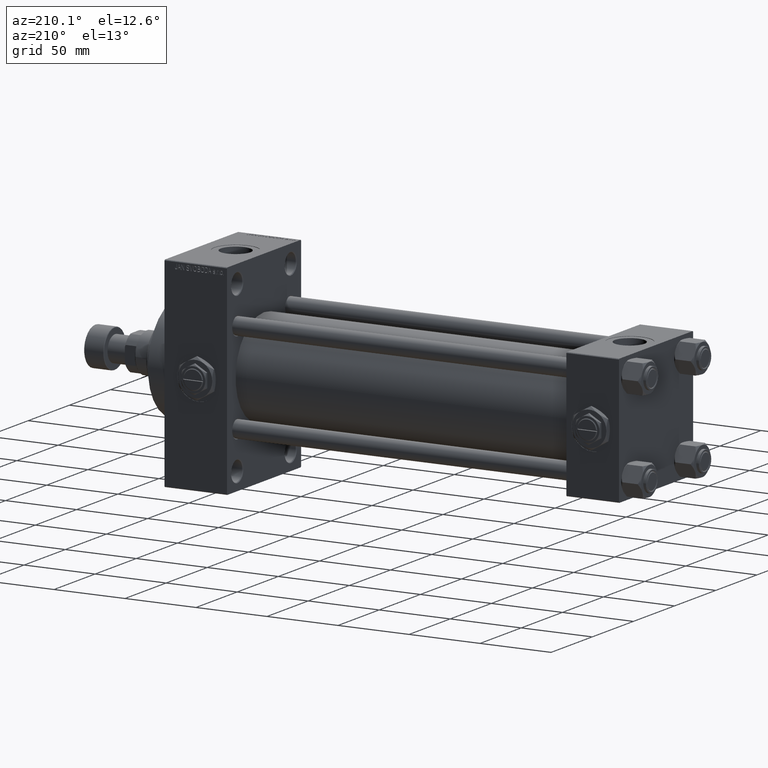
[diagram: clean part render]
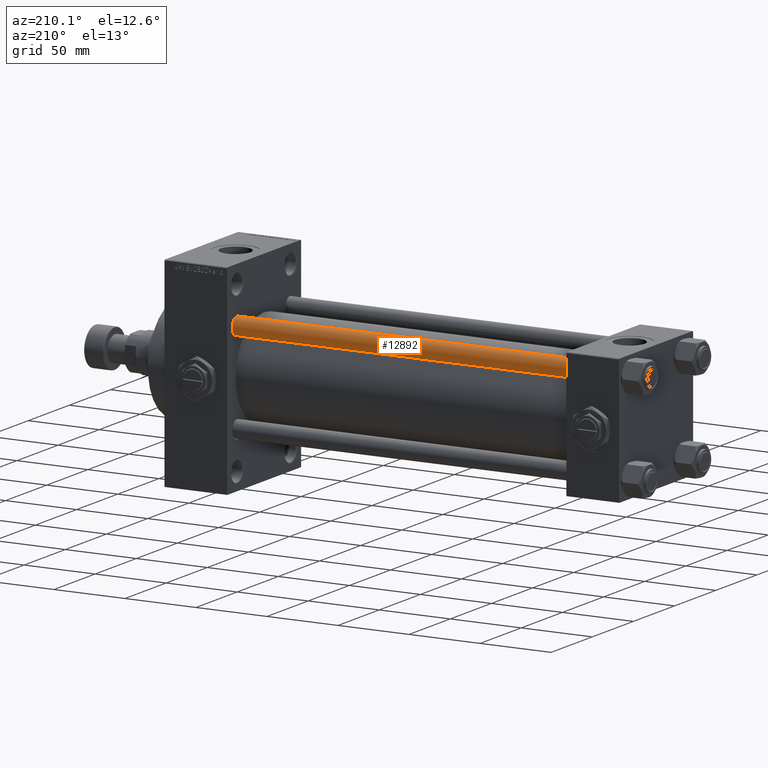
[diagram: same view with one face highlighted and labeled with its STEP entity id]
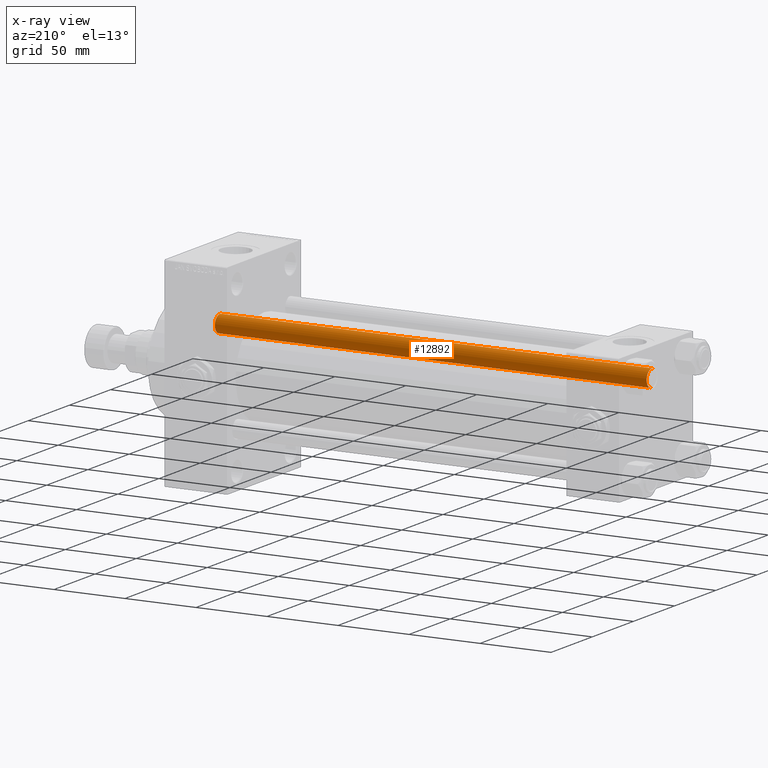
[diagram: x-ray of the same camera — body ghosted, the highlighted face saturated]
A machine part, auxiliary view. The second image highlights one B-rep face of the part: STEP entity #12892.
The next image is the same camera in x-ray: the body ghosted, the highlighted face saturated — about 0% of this face is hidden behind the body in this view.
In plain terms, the highlighted cylindrical surface (edge-blend (fillet) strip) has radius 6 mm, axis along (-1, -0, 0).
Its self-contained STEP definition (entity closure, byte-faithful):
#1213 = CIRCLE ( 'NONE', #36572, 6.000000000000000888 ) ;
#3105 = EDGE_CURVE ( 'NONE', #17522, #37456, #21265, .T. ) ;
#3807 = DIRECTION ( 'NONE',  ( -1.000000000000000000, 0.000000000000000000, 0.000000000000000000 ) ) ;
#3820 = CARTESIAN_POINT ( 'NONE',  ( 6.000000000000000888, 7.347880794884120722E-16, 305.0000000000000000 ) ) ;
#3878 = EDGE_CURVE ( 'NONE', #20648, #4058, #1213, .T. ) ;
#4058 = VERTEX_POINT ( 'NONE', #36376 ) ;
#4481 = DIRECTION ( 'NONE',  ( 1.000000000000000000, 0.000000000000000000, 0.000000000000000000 ) ) ;
#4625 = AXIS2_PLACEMENT_3D ( 'NONE', #42287, #38261, #3807 ) ;
#6978 = EDGE_CURVE ( 'NONE', #37456, #20648, #42040, .T. ) ;
#9352 = DIRECTION ( 'NONE',  ( 1.000000000000000000, 0.000000000000000000, 0.000000000000000000 ) ) ;
#9574 = VECTOR ( 'NONE', #24226, 1000.000000000000000 ) ;
#9730 = CARTESIAN_POINT ( 'NONE',  ( 6.000000000000000888, 7.347880794884120722E-16, 304.5000000000000000 ) ) ;
#12892 = ADVANCED_FACE ( 'NONE', ( #46319 ), #45318, .T. ) ;
#13010 = CARTESIAN_POINT ( 'NONE',  ( -6.000000000000000888, 0.000000000000000000, 304.5000000000000000 ) ) ;
#14595 = ORIENTED_EDGE ( 'NONE', *, *, #6978, .T. ) ;
#17522 = VERTEX_POINT ( 'NONE', #13010 ) ;
#20443 = LINE ( 'NONE', #23987, #9574 ) ;
#20648 = VERTEX_POINT ( 'NONE', #34510 ) ;
#21265 = CIRCLE ( 'NONE', #37319, 6.000000000000000888 ) ;
#23987 = CARTESIAN_POINT ( 'NONE',  ( -6.000000000000000888, 0.000000000000000000, 305.0000000000000000 ) ) ;
#24226 = DIRECTION ( 'NONE',  ( -0.000000000000000000, -0.000000000000000000, -1.000000000000000000 ) ) ;
#27892 = CARTESIAN_POINT ( 'NONE',  ( 0.000000000000000000, 0.000000000000000000, 0.5000000000000004441 ) ) ;
#28380 = DIRECTION ( 'NONE',  ( -0.000000000000000000, -0.000000000000000000, 1.000000000000000000 ) ) ;
#31815 = ORIENTED_EDGE ( 'NONE', *, *, #3105, .T. ) ;
#34510 = CARTESIAN_POINT ( 'NONE',  ( 6.000000000000000888, 7.347880794884120722E-16, 0.5000000000000004441 ) ) ;
#36376 = CARTESIAN_POINT ( 'NONE',  ( -6.000000000000000888, 0.000000000000000000, 0.5000000000000004441 ) ) ;
#36572 = AXIS2_PLACEMENT_3D ( 'NONE', #27892, #28380, #4481 ) ;
#36705 = EDGE_CURVE ( 'NONE', #17522, #4058, #20443, .T. ) ;
#37319 = AXIS2_PLACEMENT_3D ( 'NONE', #39318, #47605, #9352 ) ;
#37456 = VERTEX_POINT ( 'NONE', #9730 ) ;
#38261 = DIRECTION ( 'NONE',  ( -0.000000000000000000, -0.000000000000000000, -1.000000000000000000 ) ) ;
#39279 = DIRECTION ( 'NONE',  ( -0.000000000000000000, -0.000000000000000000, -1.000000000000000000 ) ) ;
#39318 = CARTESIAN_POINT ( 'NONE',  ( 0.000000000000000000, 0.000000000000000000, 304.5000000000000000 ) ) ;
#41758 = ORIENTED_EDGE ( 'NONE', *, *, #3878, .T. ) ;
#42040 = LINE ( 'NONE', #3820, #46990 ) ;
#42287 = CARTESIAN_POINT ( 'NONE',  ( 0.000000000000000000, 0.000000000000000000, 305.0000000000000000 ) ) ;
#44091 = ORIENTED_EDGE ( 'NONE', *, *, #36705, .F. ) ;
#45318 = CYLINDRICAL_SURFACE ( 'NONE', #4625, 6.000000000000000888 ) ;
#46319 = FACE_OUTER_BOUND ( 'NONE', #48573, .T. ) ;
#46990 = VECTOR ( 'NONE', #39279, 1000.000000000000000 ) ;
#47605 = DIRECTION ( 'NONE',  ( 0.000000000000000000, 0.000000000000000000, -1.000000000000000000 ) ) ;
#48573 = EDGE_LOOP ( 'NONE', ( #31815, #14595, #41758, #44091 ) ) ;